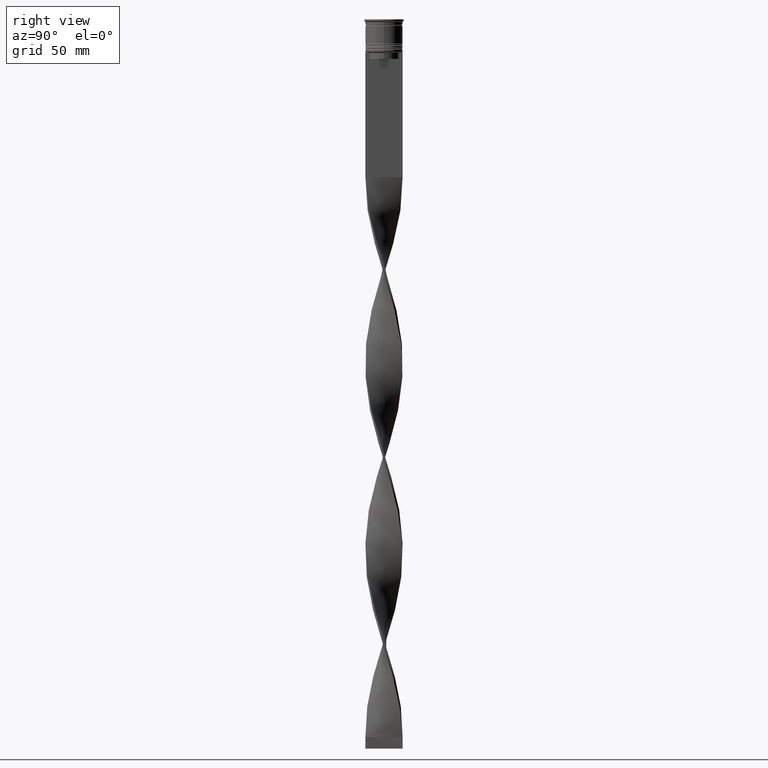
[diagram: clean part render]
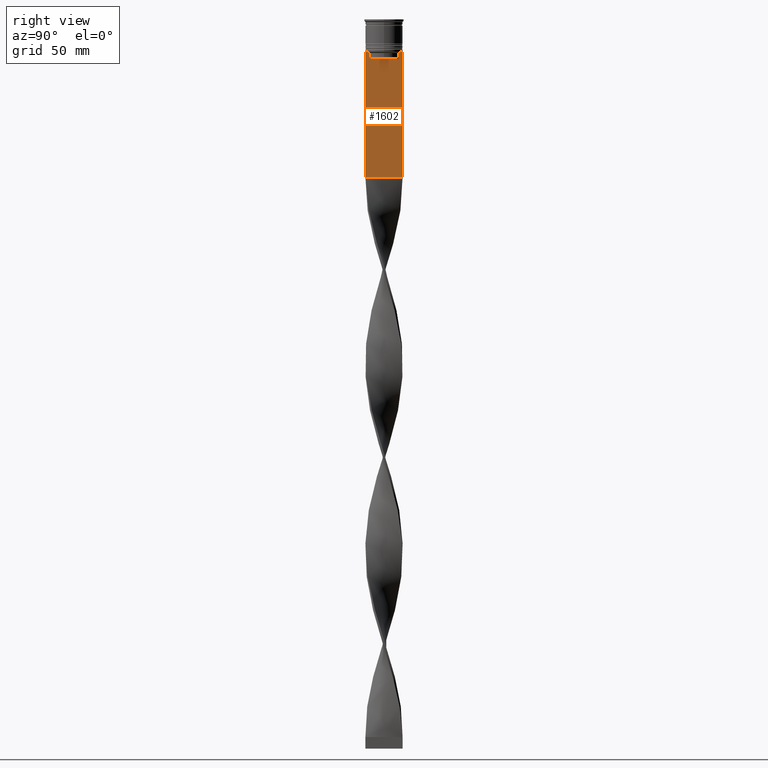
[diagram: same view with one face highlighted and labeled with its STEP entity id]
A machine part, right view. The second image highlights one B-rep face of the part: STEP entity #1602.
In plain terms, the highlighted planar face has unit normal (-1, 0, 0).
Its self-contained STEP definition (entity closure, byte-faithful):
#38 = B_SPLINE_CURVE_WITH_KNOTS ( 'NONE', 3,
 ( #2385, #2920, #1655, #1062 ),
 .UNSPECIFIED., .F., .F.,
 ( 4, 4 ),
 ( 0.02996184199614751464, 0.03067452609193705923 ),
 .UNSPECIFIED. ) ;
#58 = VERTEX_POINT ( 'NONE', #1240 ) ;
#82 = CARTESIAN_POINT ( 'NONE',  ( 0.5000000000000001110, -8.000000000000003553, -14.00000000000000178 ) ) ;
#126 = DIRECTION ( 'NONE',  ( 0.000000000000000000, 0.000000000000000000, -1.000000000000000000 ) ) ;
#175 = EDGE_CURVE ( 'NONE', #3041, #3936, #3055, .T. ) ;
#188 = DIRECTION ( 'NONE',  ( 0.000000000000000000, -1.000000000000000000, 0.000000000000000000 ) ) ;
#217 = LINE ( 'NONE', #3962, #2427 ) ;
#252 = ORIENTED_EDGE ( 'NONE', *, *, #175, .T. ) ;
#297 = EDGE_CURVE ( 'NONE', #2031, #3324, #2171, .T. ) ;
#302 = CARTESIAN_POINT ( 'NONE',  ( 0.5000000000000001110, 6.881860213634098500, -14.00000000000000178 ) ) ;
#342 = CARTESIAN_POINT ( 'NONE',  ( 0.5000000000000001110, 6.380438856379708312, 0.000000000000000000 ) ) ;
#378 = DIRECTION ( 'NONE',  ( 0.000000000000000000, 0.000000000000000000, 1.000000000000000000 ) ) ;
#419 = VECTOR ( 'NONE', #126, 1000.000000000000000 ) ;
#437 = CARTESIAN_POINT ( 'NONE',  ( 0.5000000000000001110, -6.881860213634098500, -14.00000000000000178 ) ) ;
#449 = CARTESIAN_POINT ( 'NONE',  ( 0.5000000000000001110, 6.380438856379708312, -14.50000000000000000 ) ) ;
#475 = EDGE_CURVE ( 'NONE', #3936, #3677, #3148, .T. ) ;
#604 = ORIENTED_EDGE ( 'NONE', *, *, #3132, .T. ) ;
#719 = DIRECTION ( 'NONE',  ( 0.000000000000000000, -1.000000000000000000, 0.000000000000000000 ) ) ;
#801 = DIRECTION ( 'NONE',  ( 0.000000000000000000, 1.000000000000000000, 0.000000000000000000 ) ) ;
#803 = CARTESIAN_POINT ( 'NONE',  ( 0.5000000000000001110, -6.380438856379708312, -17.00000000000000000 ) ) ;
#930 = LINE ( 'NONE', #2208, #949 ) ;
#949 = VECTOR ( 'NONE', #2230, 1000.000000000000000 ) ;
#991 = EDGE_CURVE ( 'NONE', #2031, #2566, #3567, .T. ) ;
#1029 = ORIENTED_EDGE ( 'NONE', *, *, #1868, .T. ) ;
#1038 = ORIENTED_EDGE ( 'NONE', *, *, #1131, .T. ) ;
#1061 = B_SPLINE_CURVE_WITH_KNOTS ( 'NONE', 3,
 ( #302, #1513, #2152, #3454 ),
 .UNSPECIFIED., .F., .F.,
 ( 4, 4 ),
 ( 0.01172465562756038263, 0.01243276816391822651 ),
 .UNSPECIFIED. ) ;
#1062 = CARTESIAN_POINT ( 'NONE',  ( 0.5000000000000001110, -6.881860213634098500, -14.00000000000000178 ) ) ;
#1131 = EDGE_CURVE ( 'NONE', #2566, #1387, #1820, .T. ) ;
#1182 = CARTESIAN_POINT ( 'NONE',  ( 0.5000000000000001110, 7.999999999999996447, -14.00000000000000178 ) ) ;
#1240 = CARTESIAN_POINT ( 'NONE',  ( 0.5000000000000001110, -8.000000000000003553, -68.00000000000000000 ) ) ;
#1265 = DIRECTION ( 'NONE',  ( -0.000000000000000000, -0.000000000000000000, 1.000000000000000000 ) ) ;
#1387 = VERTEX_POINT ( 'NONE', #1574 ) ;
#1457 = DIRECTION ( 'NONE',  ( 0.000000000000000000, -1.000000000000000000, 0.000000000000000000 ) ) ;
#1473 = DIRECTION ( 'NONE',  ( 0.000000000000000000, 0.000000000000000000, -1.000000000000000000 ) ) ;
#1513 = CARTESIAN_POINT ( 'NONE',  ( 0.5000000000000001110, 6.714736947114692711, -14.16668390704818847 ) ) ;
#1574 = CARTESIAN_POINT ( 'NONE',  ( 0.5000000000000001110, 6.881860213634098500, -14.00000000000000178 ) ) ;
#1602 = ADVANCED_FACE ( 'NONE', ( #2604 ), #1620, .F. ) ;
#1620 = PLANE ( 'NONE',  #3466 ) ;
#1655 = CARTESIAN_POINT ( 'NONE',  ( 0.5000000000000001110, -6.714736947305993908, -14.16668390685738821 ) ) ;
#1698 = CARTESIAN_POINT ( 'NONE',  ( 0.5000000000000001110, -8.000000000000003553, -14.00000000000000178 ) ) ;
#1729 = EDGE_CURVE ( 'NONE', #58, #3324, #3331, .T. ) ;
#1743 = ORIENTED_EDGE ( 'NONE', *, *, #475, .T. ) ;
#1750 = VECTOR ( 'NONE', #1265, 1000.000000000000000 ) ;
#1809 = CARTESIAN_POINT ( 'NONE',  ( 0.5000000000000001110, 7.999999999999996447, -68.00000000000000000 ) ) ;
#1820 = LINE ( 'NONE', #2433, #2540 ) ;
#1868 = EDGE_CURVE ( 'NONE', #2927, #58, #217, .T. ) ;
#1967 = DIRECTION ( 'NONE',  ( -1.000000000000000000, 0.000000000000000000, 0.000000000000000000 ) ) ;
#2018 = ORIENTED_EDGE ( 'NONE', *, *, #2118, .T. ) ;
#2019 = VECTOR ( 'NONE', #719, 1000.000000000000000 ) ;
#2031 = VERTEX_POINT ( 'NONE', #1182 ) ;
#2118 = EDGE_CURVE ( 'NONE', #2803, #2927, #930, .T. ) ;
#2152 = CARTESIAN_POINT ( 'NONE',  ( 0.5000000000000001110, 6.547597841304911626, -14.33335192459222718 ) ) ;
#2171 = LINE ( 'NONE', #2398, #419 ) ;
#2175 = EDGE_LOOP ( 'NONE', ( #1038, #3774, #3830, #252, #1743, #604, #2964, #2018, #1029, #2470, #3272, #3250 ) ) ;
#2208 = CARTESIAN_POINT ( 'NONE',  ( 0.5000000000000001110, -8.000000000000003553, -14.00000000000000178 ) ) ;
#2230 = DIRECTION ( 'NONE',  ( 0.000000000000000000, -1.000000000000000000, 0.000000000000000000 ) ) ;
#2363 = LINE ( 'NONE', #82, #4081 ) ;
#2385 = CARTESIAN_POINT ( 'NONE',  ( 0.5000000000000001110, -6.380438856379708312, -14.50000000000000000 ) ) ;
#2398 = CARTESIAN_POINT ( 'NONE',  ( 0.5000000000000001110, 7.999999999999996447, 2.031219541881394530 ) ) ;
#2399 = CARTESIAN_POINT ( 'NONE',  ( 0.5000000000000001110, 6.380438856379708312, -17.00000000000000000 ) ) ;
#2427 = VECTOR ( 'NONE', #1473, 1000.000000000000000 ) ;
#2433 = CARTESIAN_POINT ( 'NONE',  ( 0.5000000000000001110, -8.000000000000003553, -14.00000000000000178 ) ) ;
#2470 = ORIENTED_EDGE ( 'NONE', *, *, #1729, .T. ) ;
#2492 = VERTEX_POINT ( 'NONE', #449 ) ;
#2540 = VECTOR ( 'NONE', #188, 1000.000000000000000 ) ;
#2566 = VERTEX_POINT ( 'NONE', #3995 ) ;
#2603 = EDGE_CURVE ( 'NONE', #2492, #3041, #4053, .T. ) ;
#2604 = FACE_OUTER_BOUND ( 'NONE', #2175, .T. ) ;
#2612 = CARTESIAN_POINT ( 'NONE',  ( 0.5000000000000001110, -7.884161337770806632, -14.00000000000000178 ) ) ;
#2666 = CARTESIAN_POINT ( 'NONE',  ( 0.5000000000000001110, 6.399999999999999467, -17.00000000000000000 ) ) ;
#2696 = CARTESIAN_POINT ( 'NONE',  ( 0.5000000000000001110, -8.000000000000003553, -14.00000000000000178 ) ) ;
#2803 = VERTEX_POINT ( 'NONE', #2612 ) ;
#2849 = CARTESIAN_POINT ( 'NONE',  ( 0.5000000000000001110, -6.380438856379708312, 0.000000000000000000 ) ) ;
#2920 = CARTESIAN_POINT ( 'NONE',  ( 0.5000000000000001110, -6.547597841511247019, -14.33335192438652150 ) ) ;
#2927 = VERTEX_POINT ( 'NONE', #2696 ) ;
#2964 = ORIENTED_EDGE ( 'NONE', *, *, #3154, .T. ) ;
#3017 = VECTOR ( 'NONE', #3172, 1000.000000000000000 ) ;
#3038 = CARTESIAN_POINT ( 'NONE',  ( 0.5000000000000001110, -8.000000000000003553, -68.00000000000000000 ) ) ;
#3041 = VERTEX_POINT ( 'NONE', #2399 ) ;
#3055 = LINE ( 'NONE', #2666, #3190 ) ;
#3132 = EDGE_CURVE ( 'NONE', #3677, #3741, #38, .T. ) ;
#3139 = VECTOR ( 'NONE', #801, 1000.000000000000000 ) ;
#3148 = LINE ( 'NONE', #2849, #1750 ) ;
#3154 = EDGE_CURVE ( 'NONE', #3741, #2803, #2363, .T. ) ;
#3171 = CARTESIAN_POINT ( 'NONE',  ( 0.5000000000000001110, -6.380438856379708312, -14.50000000000000000 ) ) ;
#3172 = DIRECTION ( 'NONE',  ( 0.000000000000000000, 0.000000000000000000, -1.000000000000000000 ) ) ;
#3190 = VECTOR ( 'NONE', #1457, 1000.000000000000000 ) ;
#3250 = ORIENTED_EDGE ( 'NONE', *, *, #991, .T. ) ;
#3272 = ORIENTED_EDGE ( 'NONE', *, *, #297, .F. ) ;
#3324 = VERTEX_POINT ( 'NONE', #1809 ) ;
#3331 = LINE ( 'NONE', #3038, #3139 ) ;
#3454 = CARTESIAN_POINT ( 'NONE',  ( 0.5000000000000001110, 6.380438856379708312, -14.50000000000000000 ) ) ;
#3466 = AXIS2_PLACEMENT_3D ( 'NONE', #3582, #1967, #378 ) ;
#3567 = LINE ( 'NONE', #1698, #2019 ) ;
#3582 = CARTESIAN_POINT ( 'NONE',  ( 0.5000000000000001110, -8.000000000000003553, 2.031219541881394530 ) ) ;
#3677 = VERTEX_POINT ( 'NONE', #3171 ) ;
#3741 = VERTEX_POINT ( 'NONE', #437 ) ;
#3774 = ORIENTED_EDGE ( 'NONE', *, *, #3979, .T. ) ;
#3830 = ORIENTED_EDGE ( 'NONE', *, *, #2603, .T. ) ;
#3912 = DIRECTION ( 'NONE',  ( 0.000000000000000000, -1.000000000000000000, 0.000000000000000000 ) ) ;
#3936 = VERTEX_POINT ( 'NONE', #803 ) ;
#3962 = CARTESIAN_POINT ( 'NONE',  ( 0.5000000000000001110, -8.000000000000003553, 2.031219541881394530 ) ) ;
#3979 = EDGE_CURVE ( 'NONE', #1387, #2492, #1061, .T. ) ;
#3995 = CARTESIAN_POINT ( 'NONE',  ( 0.5000000000000001110, 7.884161337770806632, -14.00000000000000178 ) ) ;
#4053 = LINE ( 'NONE', #342, #3017 ) ;
#4081 = VECTOR ( 'NONE', #3912, 1000.000000000000000 ) ;